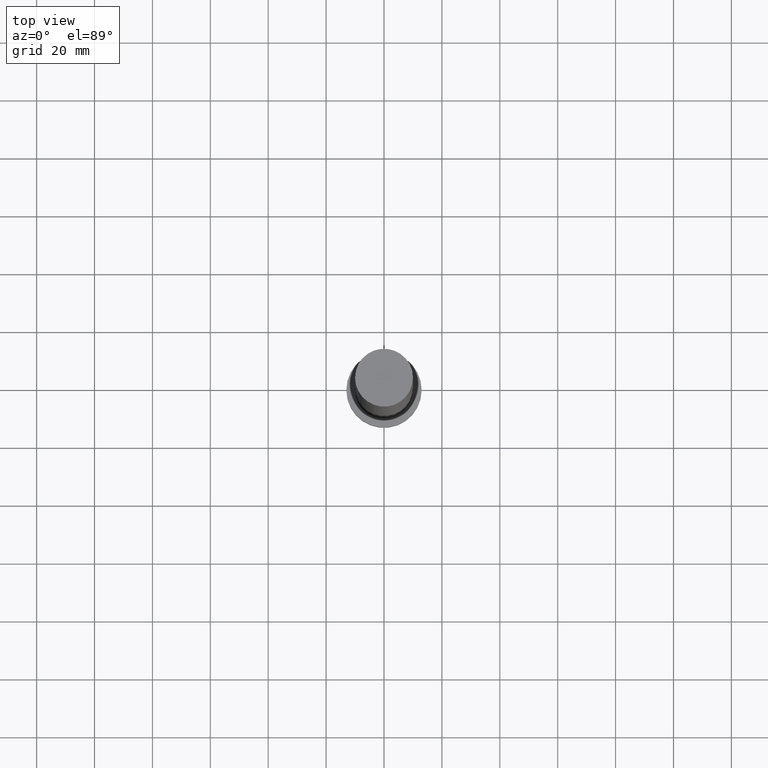
[diagram: clean part render]
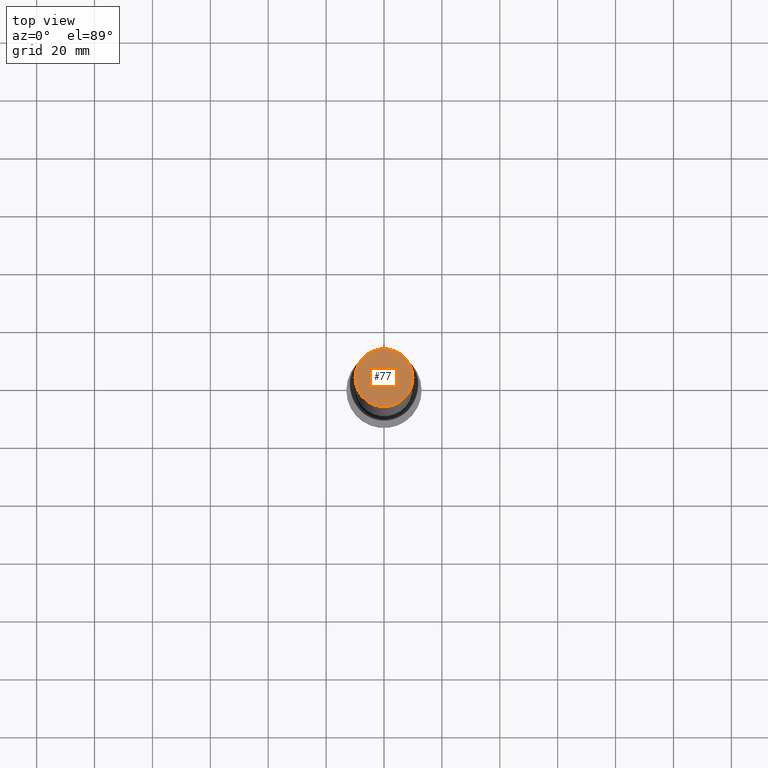
[diagram: same view with one face highlighted and labeled with its STEP entity id]
A machine part, top view. The second image highlights one B-rep face of the part: STEP entity #77.
In plain terms, the highlighted planar face has unit normal (0, 0, 1).
Its self-contained STEP definition (entity closure, byte-faithful):
#21 = DIRECTION ( 'NONE',  ( 0.000000000000000000, 0.000000000000000000, 1.000000000000000000 ) ) ;
#29 = EDGE_LOOP ( 'NONE', ( #209, #206 ) ) ;
#30 = CARTESIAN_POINT ( 'NONE',  ( 10.00000000000000000, 1.224646799147353256E-15, 250.0000000000000000 ) ) ;
#49 = VERTEX_POINT ( 'NONE', #30 ) ;
#70 = DIRECTION ( 'NONE',  ( 0.000000000000000000, 0.000000000000000000, 1.000000000000000000 ) ) ;
#77 = ADVANCED_FACE ( 'NONE', ( #119 ), #219, .T. ) ;
#87 = VERTEX_POINT ( 'NONE', #124 ) ;
#98 = DIRECTION ( 'NONE',  ( 1.000000000000000000, 0.000000000000000000, 0.000000000000000000 ) ) ;
#101 = DIRECTION ( 'NONE',  ( 1.000000000000000000, 0.000000000000000000, 0.000000000000000000 ) ) ;
#110 = DIRECTION ( 'NONE',  ( 1.000000000000000000, 0.000000000000000000, -0.000000000000000000 ) ) ;
#119 = FACE_OUTER_BOUND ( 'NONE', #29, .T. ) ;
#120 = EDGE_CURVE ( 'NONE', #87, #49, #138, .T. ) ;
#124 = CARTESIAN_POINT ( 'NONE',  ( -10.00000000000000000, 0.000000000000000000, 250.0000000000000000 ) ) ;
#138 = CIRCLE ( 'NONE', #232, 10.00000000000000000 ) ;
#155 = EDGE_CURVE ( 'NONE', #49, #87, #221, .T. ) ;
#157 = DIRECTION ( 'NONE',  ( 0.000000000000000000, 0.000000000000000000, 1.000000000000000000 ) ) ;
#177 = AXIS2_PLACEMENT_3D ( 'NONE', #188, #70, #110 ) ;
#188 = CARTESIAN_POINT ( 'NONE',  ( 0.000000000000000000, 0.000000000000000000, 250.0000000000000000 ) ) ;
#197 = CARTESIAN_POINT ( 'NONE',  ( 0.000000000000000000, 0.000000000000000000, 250.0000000000000000 ) ) ;
#199 = CARTESIAN_POINT ( 'NONE',  ( 0.000000000000000000, 0.000000000000000000, 250.0000000000000000 ) ) ;
#206 = ORIENTED_EDGE ( 'NONE', *, *, #155, .T. ) ;
#209 = ORIENTED_EDGE ( 'NONE', *, *, #120, .T. ) ;
#219 = PLANE ( 'NONE',  #177 ) ;
#221 = CIRCLE ( 'NONE', #247, 10.00000000000000000 ) ;
#232 = AXIS2_PLACEMENT_3D ( 'NONE', #199, #157, #98 ) ;
#247 = AXIS2_PLACEMENT_3D ( 'NONE', #197, #21, #101 ) ;